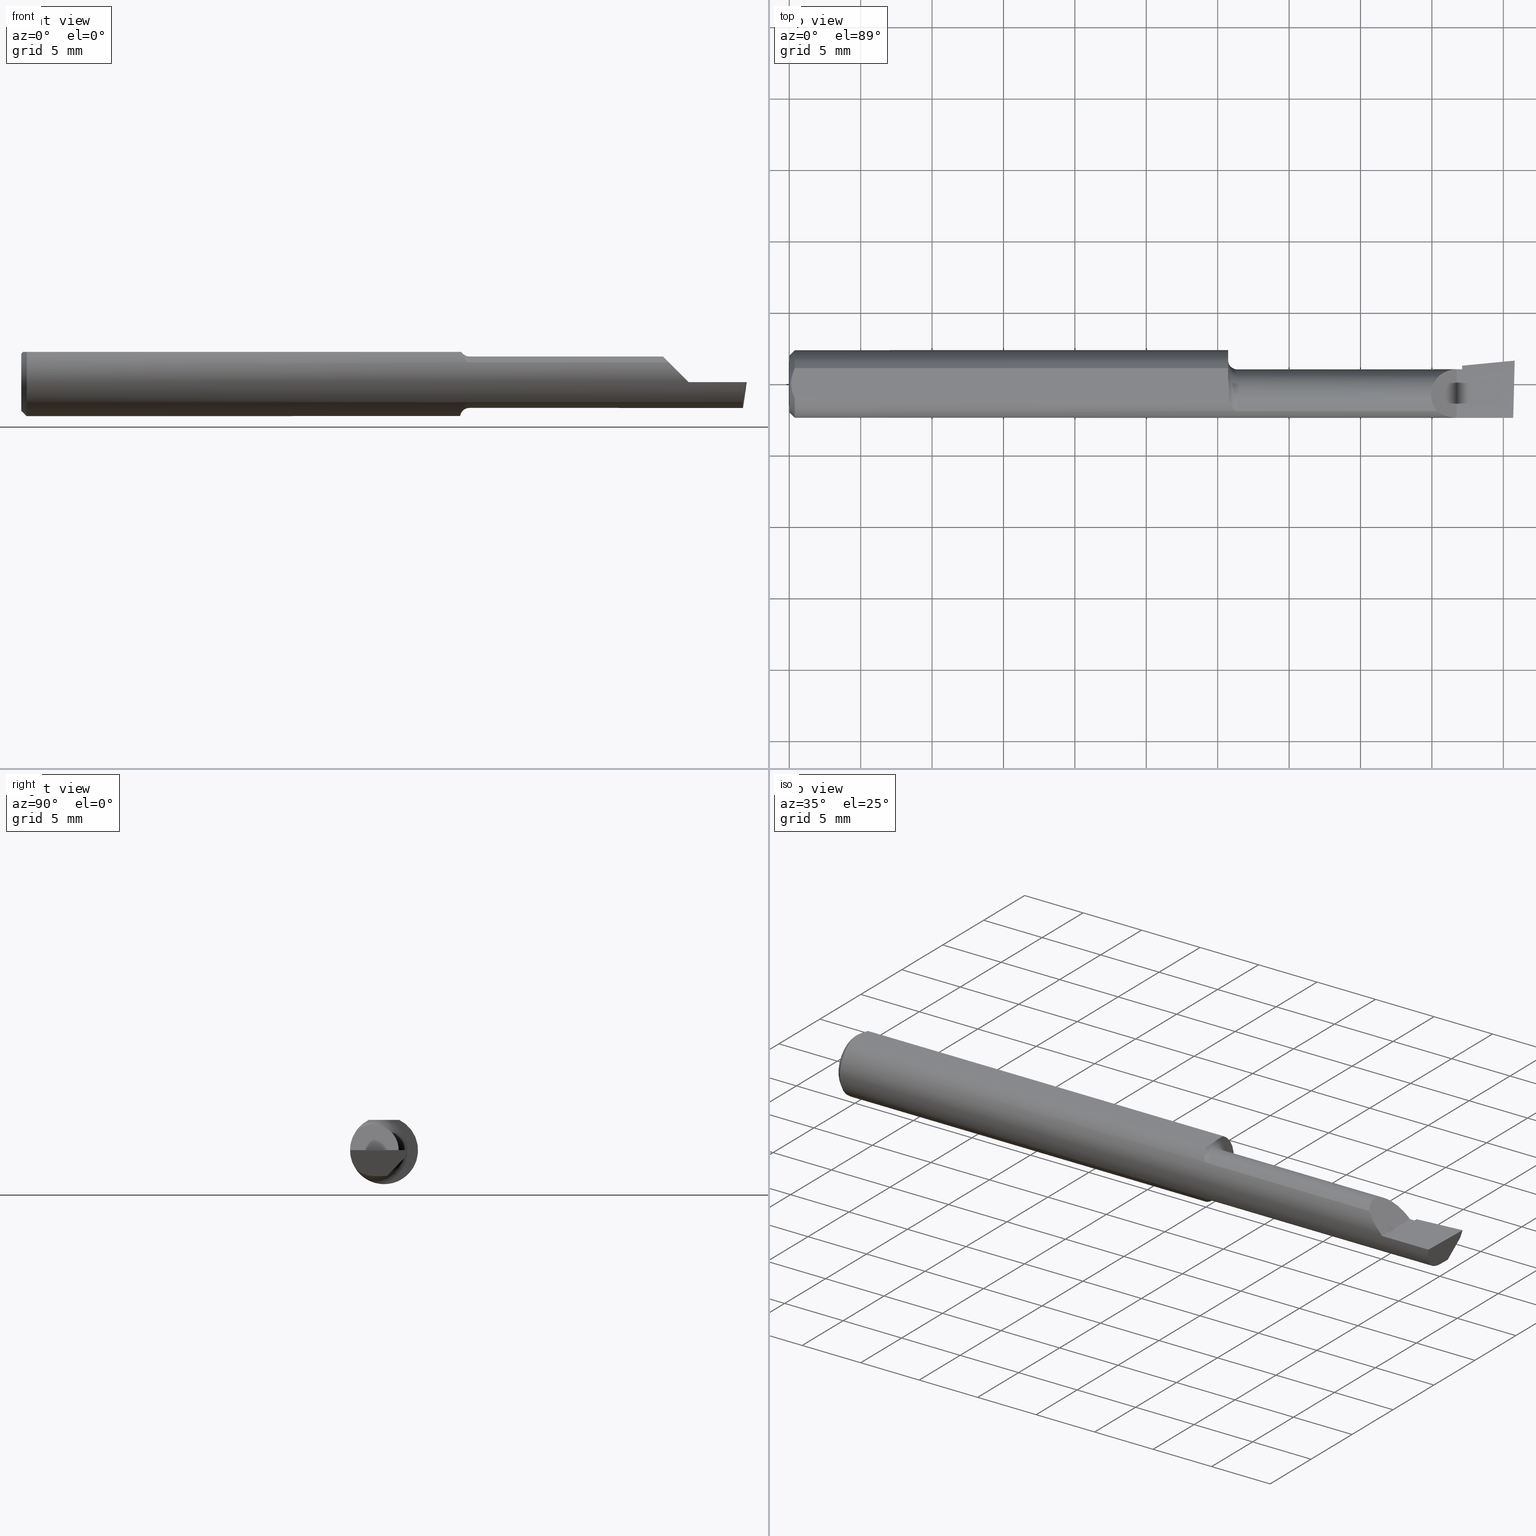
[diagram: canonical four-view strip — front | top / right | iso, engineering-drawing reading convention]
A machine part, canonical four-view strip (front | top / right | iso — engineering-drawing reading convention). The complete STEP part file that produces these views, byte-faithful:
ISO-10303-21;
HEADER;
FILE_DESCRIPTION (( 'STEP AP203' ),
    '1' );
FILE_NAME ('217342-B160750.STEP',
    '2024-04-23T17:39:09',
    ( '' ),
    ( '' ),
    'SwSTEP 2.0',
    'SolidWorks 2022',
    '' );
FILE_SCHEMA (( 'CONFIG_CONTROL_DESIGN' ));
ENDSEC;

DATA;
#1 = CARTESIAN_POINT ( 'NONE',  ( 1.989625015145393139, -0.07608366013071823919, -0.05451822320209416539 ) ) ;
#2 = EDGE_LOOP ( 'NONE', ( #332, #280, #528, #337 ) ) ;
#3 = DIRECTION ( 'NONE',  ( 2.972230601656782806E-18, -0.6963153109074924352, -0.7177360153954949196 ) ) ;
#4 = FACE_OUTER_BOUND ( 'NONE', #188, .T. ) ;
#5 = ORIENTED_EDGE ( 'NONE', *, *, #46, .F. ) ;
#6 = VECTOR ( 'NONE', #486, 39.37007874015748143 ) ;
#7 = CARTESIAN_POINT ( 'NONE',  ( 1.227249994923977461, -0.07326991650738474970, -0.05826485454810933357 ) ) ;
#8 = ADVANCED_FACE ( 'NONE', ( #36 ), #130, .T. ) ;
#9 = LINE ( 'NONE', #493, #559 ) ;
#10 = ORIENTED_EDGE ( 'NONE', *, *, #96, .T. ) ;
#11 =( CONVERSION_BASED_UNIT ( 'INCH', #599 ) LENGTH_UNIT ( ) NAMED_UNIT ( #562 ) );
#12 = DIRECTION ( 'NONE',  ( 0.000000000000000000, -0.6963153109074924352, -0.7177360153954949196 ) ) ;
#13 = ORIENTED_EDGE ( 'NONE', *, *, #607, .F. ) ;
#14 = DIRECTION ( 'NONE',  ( 0.7071067811865391350, 0.000000000000000000, -0.7071067811865558994 ) ) ;
#15 = CC_DESIGN_PERSON_AND_ORGANIZATION_ASSIGNMENT ( #60, #365, ( #136 ) ) ;
#16 = ORIENTED_EDGE ( 'NONE', *, *, #604, .T. ) ;
#17 = DIRECTION ( 'NONE',  ( 4.268512490100411279E-18, -1.000000000000000000, 0.000000000000000000 ) ) ;
#18 = VERTEX_POINT ( 'NONE', #198 ) ;
#19 =( NAMED_UNIT ( * ) SI_UNIT ( $, .STERADIAN. ) SOLID_ANGLE_UNIT ( ) );
#20 = CC_DESIGN_PERSON_AND_ORGANIZATION_ASSIGNMENT ( #420, #275, ( #166 ) ) ;
#21 = LINE ( 'NONE', #230, #22 ) ;
#22 = VECTOR ( 'NONE', #451, 39.37007874015748143 ) ;
#23 = CARTESIAN_POINT ( 'NONE',  ( 1.854999999999999982, 0.02466814268713798594, -0.04023083677511907902 ) ) ;
#24 = ADVANCED_FACE ( 'NONE', ( #382 ), #458, .F. ) ;
#25 = DIRECTION ( 'NONE',  ( 0.000000000000000000, -1.000000000000000000, 0.000000000000000000 ) ) ;
#26 = PERSON_AND_ORGANIZATION_ROLE ( 'classification_officer' ) ;
#27 = CARTESIAN_POINT ( 'NONE',  ( 1.989625015145393139, -0.07608366013071823919, -0.05451822320209416539 ) ) ;
#28 = ADVANCED_FACE ( 'NONE', ( #292 ), #392, .T. ) ;
#29 = APPLICATION_CONTEXT ( 'configuration controlled 3d designs of mechanical parts and assemblies' ) ;
#30 = CARTESIAN_POINT ( 'NONE',  ( 5.659797890829555466E-31, -0.09359999999999998876, 1.030335658007946046E-15 ) ) ;
#31 = ORIENTED_EDGE ( 'NONE', *, *, #257, .T. ) ;
#32 = FACE_OUTER_BOUND ( 'NONE', #354, .T. ) ;
#33 = ORIENTED_EDGE ( 'NONE', *, *, #131, .T. ) ;
#34 = EDGE_CURVE ( 'NONE', #59, #248, #347, .T. ) ;
#35 = DIRECTION ( 'NONE',  ( 2.429359850419096032E-34, 4.268512490100411895E-17, 1.000000000000000000 ) ) ;
#36 = FACE_OUTER_BOUND ( 'NONE', #425, .T. ) ;
#37 = VECTOR ( 'NONE', #385, 39.37007874015748854 ) ;
#38 = APPROVAL_ROLE ( '' ) ;
#39 = LINE ( 'NONE', #422, #240 ) ;
#40 = ORIENTED_EDGE ( 'NONE', *, *, #228, .T. ) ;
#41 = CIRCLE ( 'NONE', #95, 0.07100000000000017408 ) ;
#42 = ADVANCED_FACE ( 'NONE', ( #255 ), #295, .T. ) ;
#43 = DIRECTION ( 'NONE',  ( 1.000000000000000000, 4.268512490100411279E-18, 0.000000000000000000 ) ) ;
#44 = ORIENTED_EDGE ( 'NONE', *, *, #99, .F. ) ;
#45 = CARTESIAN_POINT ( 'NONE',  ( 1.996243047997680486, 0.008417438355111600892, -0.07100000000000021572 ) ) ;
#46 = EDGE_CURVE ( 'NONE', #212, #494, #362, .T. ) ;
#47 = CARTESIAN_POINT ( 'NONE',  ( 1.988641161029047755, -0.06318680184005832923, -0.06527786071030766690 ) ) ;
#48 = PRODUCT_DEFINITION_SHAPE ( 'NONE', 'NONE',  #136 ) ;
#49 = CARTESIAN_POINT ( 'NONE',  ( 1.222372878085588033, -0.06813570069660582207, -0.06426486695182642706 ) ) ;
#50 = CARTESIAN_POINT ( 'NONE',  ( 1.212861144841092864, -0.04209513036041390849, 0.08360000000000000764 ) ) ;
#51 = ORIENTED_EDGE ( 'NONE', *, *, #322, .T. ) ;
#52 = VECTOR ( 'NONE', #259, 39.37007874015748143 ) ;
#53 = DIRECTION ( 'NONE',  ( -1.000000000000000000, -4.268512490100411279E-18, -0.000000000000000000 ) ) ;
#54 = LOCAL_TIME ( 10, 39, 9.000000000000000000, #174 ) ;
#55 = PLANE ( 'NONE',  #311 ) ;
#56 = ORIENTED_EDGE ( 'NONE', *, *, #565, .F. ) ;
#57 = CARTESIAN_POINT ( 'NONE',  ( 0.005975039161239527503, -0.01453776427033146371, 0.08359999999999996600 ) ) ;
#58 = DIRECTION ( 'NONE',  ( 0.000000000000000000, -1.000000000000000000, 0.000000000000000000 ) ) ;
#59 = VERTEX_POINT ( 'NONE', #50 ) ;
#60 = PERSON_AND_ORGANIZATION ( #74, #479 ) ;
#61 = PLANE ( 'NONE',  #619 ) ;
#62 = VERTEX_POINT ( 'NONE', #152 ) ;
#63 = PERSON_AND_ORGANIZATION ( #74, #479 ) ;
#64 = EDGE_CURVE ( 'NONE', #266, #98, #253, .T. ) ;
#65 = LINE ( 'NONE', #501, #141 ) ;
#66 = ORIENTED_EDGE ( 'NONE', *, *, #394, .F. ) ;
#67 = PERSON_AND_ORGANIZATION ( #74, #479 ) ;
#68 = DIRECTION ( 'NONE',  ( 0.1240019227989323097, 0.3022330132596648400, 0.9451342385281314984 ) ) ;
#69 = ORIENTED_EDGE ( 'NONE', *, *, #604, .F. ) ;
#70 = AXIS2_PLACEMENT_3D ( 'NONE', #144, #43, #244 ) ;
#71 =( LENGTH_UNIT ( ) NAMED_UNIT ( * ) SI_UNIT ( $, .METRE. ) );
#72 = CARTESIAN_POINT ( 'NONE',  ( 1.995862624392068074, -0.09360000000000009979, -6.605666309584466665E-17 ) ) ;
#73 = EDGE_CURVE ( 'NONE', #491, #145, #81, .T. ) ;
#74 = PERSON ( 'UNSPECIFIED', 'UNSPECIFIED', 'UNSPECIFIED', ('UNSPECIFIED'), ('UNSPECIFIED'), ('UNSPECIFIED') ) ;
#75 = LINE ( 'NONE', #30, #246 ) ;
#76 = VECTOR ( 'NONE', #206, 39.37007874015748143 ) ;
#77 =( GEOMETRIC_REPRESENTATION_CONTEXT ( 3 ) GLOBAL_UNCERTAINTY_ASSIGNED_CONTEXT ( ( #109 ) ) GLOBAL_UNIT_ASSIGNED_CONTEXT ( ( #11, #403, #19 ) ) REPRESENTATION_CONTEXT ( 'NONE', 'WORKASPACE' ) );
#78 = EDGE_CURVE ( 'NONE', #494, #147, #627, .T. ) ;
#79 = PERSON_AND_ORGANIZATION_ROLE ( 'creator' ) ;
#80 = CARTESIAN_POINT ( 'NONE',  ( 0.01500000000000000291, -0.04209513035969835587, 0.08360000000000000764 ) ) ;
#81 = CIRCLE ( 'NONE', #150, 0.09360000000000001652 ) ;
#82 =( BOUNDED_CURVE ( )  B_SPLINE_CURVE ( 3, ( #535, #102, #393, #247 ),
 .UNSPECIFIED., .F., .T. ) 
 B_SPLINE_CURVE_WITH_KNOTS ( ( 4, 4 ),
 ( 5.587886473277670518, 7.853981633974482790 ),
 .UNSPECIFIED. ) 
 CURVE ( )  GEOMETRIC_REPRESENTATION_ITEM ( )  RATIONAL_B_SPLINE_CURVE ( ( 1.000000000000000000, 0.6159343746860722613, 0.6159343746860722613, 1.000000000000000000 ) ) 
 REPRESENTATION_ITEM ( '' )  );
#83 = PLANE ( 'NONE',  #190 ) ;
#84 = ORIENTED_EDGE ( 'NONE', *, *, #279, .T. ) ;
#85 = B_SPLINE_CURVE_WITH_KNOTS ( 'NONE', 3,
 ( #455, #318, #364, #321, #274, #267, #369, #177 ),
 .UNSPECIFIED., .F., .F.,
 ( 4, 2, 2, 4 ),
 ( 0.009574067517472211256, 0.01031724332539403835, 0.01068883122935495276, 0.01106041913331586718 ),
 .UNSPECIFIED. ) ;
#86 = FACE_OUTER_BOUND ( 'NONE', #2, .T. ) ;
#87 = ADVANCED_FACE ( 'NONE', ( #215 ), #55, .F. ) ;
#88 = ORIENTED_EDGE ( 'NONE', *, *, #375, .F. ) ;
#89 = SECURITY_CLASSIFICATION_LEVEL ( 'unclassified' ) ;
#90 = FACE_OUTER_BOUND ( 'NONE', #334, .T. ) ;
#91 = EDGE_LOOP ( 'NONE', ( #40, #5, #84, #216, #580, #33 ) ) ;
#92 = B_SPLINE_CURVE_WITH_KNOTS ( 'NONE', 3,
 ( #582, #523, #296, #160, #7, #483, #49, #346, #489, #258, #446, #213, #114, #586 ),
 .UNSPECIFIED., .F., .F.,
 ( 4, 2, 2, 2, 2, 2, 4 ),
 ( 1.959461805732903391E-07, 0.0001418114856513832186, 0.0002834270251222010813, 0.0005666581040638365898, 0.001133120261947111402, 0.001699582419830386213, 0.002266044577713661242 ),
 .UNSPECIFIED. ) ;
#93 = DIRECTION ( 'NONE',  ( 0.09165774897393336174, -0.9519021185660612172, 0.2923717047227308297 ) ) ;
#94 = VERTEX_POINT ( 'NONE', #103 ) ;
#95 = AXIS2_PLACEMENT_3D ( 'NONE', #97, #379, #370 ) ;
#96 = EDGE_CURVE ( 'NONE', #145, #283, #9, .T. ) ;
#97 = CARTESIAN_POINT ( 'NONE',  ( 1.854999999999999982, -0.03060000000000022424, 0.000000000000000000 ) ) ;
#98 = VERTEX_POINT ( 'NONE', #167 ) ;
#99 = EDGE_CURVE ( 'NONE', #283, #491, #299, .T. ) ;
#100 = CARTESIAN_POINT ( 'NONE',  ( 0.000000000000000000, 0.000000000000000000, 0.000000000000000000 ) ) ;
#101 = CARTESIAN_POINT ( 'NONE',  ( 0.000000000000000000, -0.04209513035969835587, 0.08360000000000000764 ) ) ;
#102 = CARTESIAN_POINT ( 'NONE',  ( 1.740893772288689023, -0.02263899945514353737, 0.09910622771130987718 ) ) ;
#103 = CARTESIAN_POINT ( 'NONE',  ( 0.01499999999999999771, 0.04209513035969837669, 0.08360000000000000764 ) ) ;
#104 = CIRCLE ( 'NONE', #525, 0.07859999999999965625 ) ;
#105 = CARTESIAN_POINT ( 'NONE',  ( 0.005000000000000237761, 1.025183009042025117E-17, 0.08360000000000000764 ) ) ;
#106 = CARTESIAN_POINT ( 'NONE',  ( 0.01499999999999999771, 0.000000000000000000, -0.09360000000000001652 ) ) ;
#107 = EDGE_CURVE ( 'NONE', #18, #62, #388, .T. ) ;
#108 = VECTOR ( 'NONE', #504, 39.37007874015748143 ) ;
#109 = UNCERTAINTY_MEASURE_WITH_UNIT (LENGTH_MEASURE( 1.000000000000000082E-05 ), #11, 'distance_accuracy_value', 'NONE');
#110 = CARTESIAN_POINT ( 'NONE',  ( 1.013387277386880392, -0.03060000000000022771, 4.736658843696217583E-16 ) ) ;
#111 = CC_DESIGN_APPROVAL ( #579, ( #166 ) ) ;
#112 = CARTESIAN_POINT ( 'NONE',  ( 2.000000000000000000, 0.1436000000000000332, 0.08359999999999999376 ) ) ;
#113 = ORIENTED_EDGE ( 'NONE', *, *, #34, .F. ) ;
#114 = CARTESIAN_POINT ( 'NONE',  ( 1.209999999999995746, -0.01523829271462613828, -0.09264723852076074684 ) ) ;
#115 = CARTESIAN_POINT ( 'NONE',  ( 1.854999999999999982, 0.04694360585384958068, -0.01137731495658559321 ) ) ;
#116 = VERTEX_POINT ( 'NONE', #106 ) ;
#117 = ADVANCED_FACE ( 'NONE', ( #576 ), #61, .F. ) ;
#118 = APPROVAL_ROLE ( '' ) ;
#119 = CARTESIAN_POINT ( 'NONE',  ( 1.991292915001084296, -0.08756847698997996532, -0.03849042825095482651 ) ) ;
#120 = ORIENTED_EDGE ( 'NONE', *, *, #64, .T. ) ;
#121 = CALENDAR_DATE ( 2024, 23, 4 ) ;
#122 = SECURITY_CLASSIFICATION ( '', '', #89 ) ;
#123 = DIRECTION ( 'NONE',  ( -1.000000000000000000, 5.691349986800549142E-18, -0.000000000000000000 ) ) ;
#124 = ORIENTED_EDGE ( 'NONE', *, *, #583, .F. ) ;
#125 = PERSON_AND_ORGANIZATION ( #74, #479 ) ;
#126 = LINE ( 'NONE', #355, #303 ) ;
#127 = VECTOR ( 'NONE', #3, 39.37007874015748143 ) ;
#128 = LINE ( 'NONE', #602, #547 ) ;
#129 = LINE ( 'NONE', #223, #108 ) ;
#130 = CONICAL_SURFACE ( 'NONE', #428, 0.09360000000000001652, 0.7853981633974601584 ) ;
#131 = EDGE_CURVE ( 'NONE', #390, #307, #219, .T. ) ;
#132 = PLANE ( 'NONE',  #164 ) ;
#133 = COORDINATED_UNIVERSAL_TIME_OFFSET ( 8, 0, .BEHIND. ) ;
#134 = CARTESIAN_POINT ( 'NONE',  ( 1.220942860874688840, -0.06599234460544596559, 0.06650584501266759707 ) ) ;
#135 = ORIENTED_EDGE ( 'NONE', *, *, #616, .T. ) ;
#136 = PRODUCT_DEFINITION ( 'UNKNOWN', '', #166, #308 ) ;
#137 = CARTESIAN_POINT ( 'NONE',  ( 0.01499999999999999771, 0.000000000000000000, 0.000000000000000000 ) ) ;
#138 = ORIENTED_EDGE ( 'NONE', *, *, #214, .F. ) ;
#139 = DIRECTION ( 'NONE',  ( 1.000000000000000000, 0.000000000000000000, 0.000000000000000000 ) ) ;
#140 = ORIENTED_EDGE ( 'NONE', *, *, #554, .F. ) ;
#141 = VECTOR ( 'NONE', #14, 39.37007874015748143 ) ;
#142 = CC_DESIGN_PERSON_AND_ORGANIZATION_ASSIGNMENT ( #125, #79, ( #166 ) ) ;
#143 = LOCAL_TIME ( 10, 39, 9.000000000000000000, #545 ) ;
#144 = CARTESIAN_POINT ( 'NONE',  ( 1.209999999999999964, 0.06539999999999993041, 0.000000000000000000 ) ) ;
#145 = VERTEX_POINT ( 'NONE', #578 ) ;
#146 = CARTESIAN_POINT ( 'NONE',  ( 1.995862624392068074, -0.09360000000000009979, -6.605666309584466665E-17 ) ) ;
#147 = VERTEX_POINT ( 'NONE', #154 ) ;
#148 = B_SPLINE_CURVE_WITH_KNOTS ( 'NONE', 3,
 ( #284, #291, #187, #471, #564, #558 ),
 .UNSPECIFIED., .F., .F.,
 ( 4, 2, 4 ),
 ( 0.006881281100865561072, 0.007427683811376461706, 0.007974086521887361473 ),
 .UNSPECIFIED. ) ;
#149 = EDGE_CURVE ( 'NONE', #237, #476, #341, .T. ) ;
#150 = AXIS2_PLACEMENT_3D ( 'NONE', #158, #490, #438 ) ;
#151 = DIRECTION ( 'NONE',  ( 0.000000000000000000, 0.000000000000000000, 1.000000000000000000 ) ) ;
#152 = CARTESIAN_POINT ( 'NONE',  ( 1.854999999999999982, 0.04429519371539576006, -0.02000000000000000042 ) ) ;
#153 = CARTESIAN_POINT ( 'NONE',  ( 0.000000000000000000, 0.000000000000000000, -0.07859999999999965625 ) ) ;
#154 = CARTESIAN_POINT ( 'NONE',  ( 1.234999999999999876, -0.07608366013071811429, -0.05451822320209421396 ) ) ;
#155 = ORIENTED_EDGE ( 'NONE', *, *, #477, .F. ) ;
#156 = PLANE ( 'NONE',  #268 ) ;
#157 = ADVANCED_FACE ( 'NONE', ( #4 ), #531, .F. ) ;
#158 = CARTESIAN_POINT ( 'NONE',  ( 1.209999999999999964, 0.000000000000000000, 0.000000000000000000 ) ) ;
#159 = AXIS2_PLACEMENT_3D ( 'NONE', #492, #249, #352 ) ;
#160 = CARTESIAN_POINT ( 'NONE',  ( 1.228446742734843999, -0.07415202900322766244, -0.05712995986028734929 ) ) ;
#161 = DIRECTION ( 'NONE',  ( -1.000000000000000000, -4.268512490100411279E-18, -0.000000000000000000 ) ) ;
#162 = PRODUCT_RELATED_PRODUCT_CATEGORY ( 'detail', '', ( #389 ) ) ;
#163 = EDGE_LOOP ( 'NONE', ( #469, #298, #544, #453, #500, #192, #66, #204, #31, #329, #377, #242 ) ) ;
#164 = AXIS2_PLACEMENT_3D ( 'NONE', #265, #411, #182 ) ;
#165 = CARTESIAN_POINT ( 'NONE',  ( 1.234999999999999876, -0.03060000000000022771, 0.000000000000000000 ) ) ;
#166 = PRODUCT_DEFINITION_FORMATION_WITH_SPECIFIED_SOURCE ( 'ANY', '', #389, .NOT_KNOWN. ) ;
#167 = CARTESIAN_POINT ( 'NONE',  ( 1.854999999999999982, 0.003039038829300973361, -0.06252531540616797223 ) ) ;
#168 = ORIENTED_EDGE ( 'NONE', *, *, #442, .F. ) ;
#169 = DIRECTION ( 'NONE',  ( 0.000000000000000000, 0.000000000000000000, 1.000000000000000000 ) ) ;
#170 = CARTESIAN_POINT ( 'NONE',  ( 0.000000000000000000, -0.03060000000000023118, 0.000000000000000000 ) ) ;
#171 = EDGE_CURVE ( 'NONE', #283, #59, #85, .T. ) ;
#172 = ORIENTED_EDGE ( 'NONE', *, *, #293, .F. ) ;
#173 = APPLICATION_CONTEXT ( 'configuration controlled 3d designs of mechanical parts and assemblies' ) ;
#174 = COORDINATED_UNIVERSAL_TIME_OFFSET ( 8, 0, .BEHIND. ) ;
#175 = FACE_OUTER_BOUND ( 'NONE', #406, .T. ) ;
#176 = ORIENTED_EDGE ( 'NONE', *, *, #243, .T. ) ;
#177 = CARTESIAN_POINT ( 'NONE',  ( 1.212861144841092864, -0.04209513036041390849, 0.08360000000000000764 ) ) ;
#178 = PERSON_AND_ORGANIZATION_ROLE ( 'design_owner' ) ;
#179 = DIRECTION ( 'NONE',  ( 0.000000000000000000, 1.000000000000000000, -1.189000693621284344E-16 ) ) ;
#180 = ADVANCED_FACE ( 'NONE', ( #175 ), #226, .T. ) ;
#181 = CARTESIAN_POINT ( 'NONE',  ( 1.987153287650113009, -0.009717623157798383621, -0.08879077981909570816 ) ) ;
#182 = DIRECTION ( 'NONE',  ( 4.268512490100411279E-18, -1.000000000000000000, 0.000000000000000000 ) ) ;
#183 = CARTESIAN_POINT ( 'NONE',  ( 1.216341906786436500, -0.05682123740528505912, 0.07483672126184984230 ) ) ;
#184 = ORIENTED_EDGE ( 'NONE', *, *, #474, .T. ) ;
#185 = VECTOR ( 'NONE', #317, 39.37007874015748854 ) ;
#186 = EDGE_CURVE ( 'NONE', #556, #116, #65, .T. ) ;
#187 = CARTESIAN_POINT ( 'NONE',  ( 0.005981829149300847866, 0.01454044632356568667, 0.08360000000000000764 ) ) ;
#188 = EDGE_LOOP ( 'NONE', ( #445, #436, #371, #397, #140, #113 ) ) ;
#189 = CALENDAR_DATE ( 2024, 23, 4 ) ;
#190 = AXIS2_PLACEMENT_3D ( 'NONE', #191, #93, #278 ) ;
#191 = CARTESIAN_POINT ( 'NONE',  ( 1.434010493224923355, 0.009901409102841280535, -6.829619984160658046E-17 ) ) ;
#192 = ORIENTED_EDGE ( 'NONE', *, *, #34, .T. ) ;
#193 = APPROVAL_DATE_TIME ( #557, #470 ) ;
#194 = DIRECTION ( 'NONE',  ( 0.000000000000000000, -1.000000000000000000, 4.268512490100411895E-17 ) ) ;
#195 = CARTESIAN_POINT ( 'NONE',  ( 0.01499999999999999771, 0.000000000000000000, 0.000000000000000000 ) ) ;
#196 = VECTOR ( 'NONE', #123, 39.37007874015748143 ) ;
#197 = CARTESIAN_POINT ( 'NONE',  ( 1.222718485147074929, -0.06880529263944755447, 0.06356579742164532310 ) ) ;
#198 = CARTESIAN_POINT ( 'NONE',  ( 1.854999999999999982, 0.05043808801135914177, 1.026577253869148871E-15 ) ) ;
#199 = CARTESIAN_POINT ( 'NONE',  ( 0.005000000000000237761, 1.025183009042025117E-17, 0.08360000000000000764 ) ) ;
#200 = EDGE_LOOP ( 'NONE', ( #310, #155, #138, #69, #256, #497 ) ) ;
#201 = LINE ( 'NONE', #628, #127 ) ;
#202 = DIRECTION ( 'NONE',  ( -1.000000000000000000, 0.000000000000000000, 5.493159289247764363E-16 ) ) ;
#203 = EDGE_CURVE ( 'NONE', #618, #266, #273, .T. ) ;
#204 = ORIENTED_EDGE ( 'NONE', *, *, #306, .F. ) ;
#205 = CARTESIAN_POINT ( 'NONE',  ( 0.01500000000000000291, -0.04209513035969835587, 0.08360000000000000764 ) ) ;
#206 = DIRECTION ( 'NONE',  ( 1.000000000000000000, 4.268512490100411279E-18, 0.000000000000000000 ) ) ;
#207 = ORIENTED_EDGE ( 'NONE', *, *, #78, .T. ) ;
#208 = CARTESIAN_POINT ( 'NONE',  ( 0.005000000000000228220, -0.007328888879231051229, 0.08359999999999999376 ) ) ;
#209 = CARTESIAN_POINT ( 'NONE',  ( 0.000000000000000000, 0.000000000000000000, 0.000000000000000000 ) ) ;
#210 = CC_DESIGN_DATE_AND_TIME_ASSIGNMENT ( #611, #551, ( #122 ) ) ;
#211 = CONICAL_SURFACE ( 'NONE', #581, 0.09360000000000001652, 0.7853981633974601584 ) ;
#212 = VERTEX_POINT ( 'NONE', #233 ) ;
#213 = CARTESIAN_POINT ( 'NONE',  ( 1.210327566746672412, -0.02246933888146969080, -0.09115683487700423915 ) ) ;
#214 = EDGE_CURVE ( 'NONE', #618, #18, #315, .T. ) ;
#215 = FACE_OUTER_BOUND ( 'NONE', #200, .T. ) ;
#216 = ORIENTED_EDGE ( 'NONE', *, *, #583, .T. ) ;
#217 = LINE ( 'NONE', #261, #185 ) ;
#218 = LOCAL_TIME ( 10, 39, 9.000000000000000000, #620 ) ;
#219 = LINE ( 'NONE', #404, #52 ) ;
#220 = EDGE_CURVE ( 'NONE', #212, #402, #359, .T. ) ;
#221 = ORIENTED_EDGE ( 'NONE', *, *, #220, .T. ) ;
#222 = DATE_TIME_ROLE ( 'creation_date' ) ;
#223 = CARTESIAN_POINT ( 'NONE',  ( 1.854999999999999982, -0.03060000000000022424, -0.07100000000000021572 ) ) ;
#224 = ORIENTED_EDGE ( 'NONE', *, *, #64, .F. ) ;
#225 = DIRECTION ( 'NONE',  ( 0.1053106618241779063, 0.6976485211320171409, 0.7086580314005218595 ) ) ;
#226 = CYLINDRICAL_SURFACE ( 'NONE', #229, 0.07100000000000017408 ) ;
#227 = ORIENTED_EDGE ( 'NONE', *, *, #286, .F. ) ;
#228 = EDGE_CURVE ( 'NONE', #307, #494, #407, .T. ) ;
#229 = AXIS2_PLACEMENT_3D ( 'NONE', #170, #550, #17 ) ;
#230 = CARTESIAN_POINT ( 'NONE',  ( 1.988799325593724632, -0.03030670001847553252, -0.07100000000000021572 ) ) ;
#231 = COORDINATED_UNIVERSAL_TIME_OFFSET ( 8, 0, .BEHIND. ) ;
#232 = VECTOR ( 'NONE', #584, 39.37007874015748143 ) ;
#233 = CARTESIAN_POINT ( 'NONE',  ( 1.988791645263412011, -0.03060000000000022424, -0.07100000000000021572 ) ) ;
#234 = CARTESIAN_POINT ( 'NONE',  ( 1.801509571749044802, -0.08756847698998002083, 0.03849042825095470161 ) ) ;
#235 = EDGE_CURVE ( 'NONE', #289, #390, #499, .T. ) ;
#236 = CARTESIAN_POINT ( 'NONE',  ( 0.000000000000000000, 1.054420894065869177E-17, 0.07859999999999965625 ) ) ;
#237 = VERTEX_POINT ( 'NONE', #418 ) ;
#238 = CARTESIAN_POINT ( 'NONE',  ( 0.01499999999999999771, 0.000000000000000000, 0.000000000000000000 ) ) ;
#239 = ORIENTED_EDGE ( 'NONE', *, *, #73, .T. ) ;
#240 = VECTOR ( 'NONE', #468, 39.37007874015748143 ) ;
#241 = FACE_OUTER_BOUND ( 'NONE', #91, .T. ) ;
#242 = ORIENTED_EDGE ( 'NONE', *, *, #78, .F. ) ;
#243 = EDGE_CURVE ( 'NONE', #98, #402, #431, .T. ) ;
#244 = DIRECTION ( 'NONE',  ( -4.268512490100411279E-18, 1.000000000000000000, 0.000000000000000000 ) ) ;
#245 = EDGE_LOOP ( 'NONE', ( #56, #172, #448 ) ) ;
#246 = VECTOR ( 'NONE', #552, 39.37007874015748143 ) ;
#247 = CARTESIAN_POINT ( 'NONE',  ( 1.840000000000000080, 0.04039999999999985963, 1.959434878635762025E-17 ) ) ;
#248 = VERTEX_POINT ( 'NONE', #80 ) ;
#249 = DIRECTION ( 'NONE',  ( -1.000000000000000000, -0.000000000000000000, -0.000000000000000000 ) ) ;
#250 = CARTESIAN_POINT ( 'NONE',  ( 1.854999999999999982, 0.02466814268713798594, -0.04023083677511907902 ) ) ;
#251 = CC_DESIGN_PERSON_AND_ORGANIZATION_ASSIGNMENT ( #538, #178, ( #389 ) ) ;
#252 = DIRECTION ( 'NONE',  ( -1.000000000000000000, -4.268512490100411279E-18, 0.000000000000000000 ) ) ;
#253 = LINE ( 'NONE', #250, #232 ) ;
#254 = DIRECTION ( 'NONE',  ( 0.000000000000000000, 0.000000000000000000, -1.000000000000000000 ) ) ;
#255 = FACE_OUTER_BOUND ( 'NONE', #163, .T. ) ;
#256 = ORIENTED_EDGE ( 'NONE', *, *, #419, .F. ) ;
#257 = EDGE_CURVE ( 'NONE', #94, #145, #126, .T. ) ;
#258 = CARTESIAN_POINT ( 'NONE',  ( 1.212858269845931369, -0.04306185800455388651, -0.08341374477435810342 ) ) ;
#259 = DIRECTION ( 'NONE',  ( -0.02617694830786939167, -0.9996573249755573709, 1.459184416195897376E-17 ) ) ;
#260 = VERTEX_POINT ( 'NONE', #459 ) ;
#261 = CARTESIAN_POINT ( 'NONE',  ( 1.434596552969581884, 0.003814945941878291214, -0.02000000000000000042 ) ) ;
#262 = ADVANCED_FACE ( 'NONE', ( #603 ), #132, .T. ) ;
#263 = DIRECTION ( 'NONE',  ( 1.253267817926300227E-18, -0.2936076258024065688, -0.9559260233253794592 ) ) ;
#264 = ORIENTED_EDGE ( 'NONE', *, *, #279, .F. ) ;
#265 = CARTESIAN_POINT ( 'NONE',  ( 1.854999999999999982, 0.05043808801135670622, 0.000000000000000000 ) ) ;
#266 = VERTEX_POINT ( 'NONE', #539 ) ;
#267 = CARTESIAN_POINT ( 'NONE',  ( 1.213362255574652604, -0.03233437538769824704, 0.08360000000000003539 ) ) ;
#268 = AXIS2_PLACEMENT_3D ( 'NONE', #529, #252, #294 ) ;
#269 = EDGE_LOOP ( 'NONE', ( #239, #10, #472 ) ) ;
#270 = CARTESIAN_POINT ( 'NONE',  ( 1.854999999999999982, 0.04039999999999999841, 1.030335658007946637E-15 ) ) ;
#271 = CARTESIAN_POINT ( 'NONE',  ( 1.989254605881537685, 0.03820997996013979214, -0.08190066459133922561 ) ) ;
#272 = CARTESIAN_POINT ( 'NONE',  ( 0.000000000000000000, 0.000000000000000000, 0.000000000000000000 ) ) ;
#273 = CIRCLE ( 'NONE', #349, 0.07100000000000021572 ) ;
#274 = CARTESIAN_POINT ( 'NONE',  ( 1.213154437539956110, -0.02258334521707476214, 0.08360000000000000764 ) ) ;
#275 = PERSON_AND_ORGANIZATION_ROLE ( 'design_supplier' ) ;
#276 = AXIS2_PLACEMENT_3D ( 'NONE', #209, #396, #482 ) ;
#277 = CARTESIAN_POINT ( 'NONE',  ( 1.854999999999999982, -0.2500000000000000555, 1.135460985248596835E-17 ) ) ;
#278 = DIRECTION ( 'NONE',  ( 0.000000000000000000, -0.2936076258024065688, -0.9559260233253794592 ) ) ;
#279 = EDGE_CURVE ( 'NONE', #212, #509, #21, .T. ) ;
#280 = ORIENTED_EDGE ( 'NONE', *, *, #616, .F. ) ;
#281 = CALENDAR_DATE ( 2024, 23, 4 ) ;
#282 = CARTESIAN_POINT ( 'NONE',  ( 0.000000000000000000, 0.000000000000000000, 0.000000000000000000 ) ) ;
#283 = VERTEX_POINT ( 'NONE', #601 ) ;
#284 = CARTESIAN_POINT ( 'NONE',  ( 0.005000000000000237761, 1.025183009042025117E-17, 0.08360000000000000764 ) ) ;
#285 = ORIENTED_EDGE ( 'NONE', *, *, #442, .T. ) ;
#286 = EDGE_CURVE ( 'NONE', #402, #260, #129, .T. ) ;
#287 = AXIS2_PLACEMENT_3D ( 'NONE', #624, #435, #437 ) ;
#288 = PLANE ( 'NONE',  #368 ) ;
#289 = VERTEX_POINT ( 'NONE', #543 ) ;
#290 = AXIS2_PLACEMENT_3D ( 'NONE', #339, #536, #441 ) ;
#291 = CARTESIAN_POINT ( 'NONE',  ( 0.005000000000000227353, 0.007308422719211826561, 0.08360000000000000764 ) ) ;
#292 = FACE_OUTER_BOUND ( 'NONE', #356, .T. ) ;
#293 = EDGE_CURVE ( 'NONE', #360, #476, #384, .T. ) ;
#294 = DIRECTION ( 'NONE',  ( 4.268512490100411279E-18, -1.000000000000000000, 0.000000000000000000 ) ) ;
#295 = CYLINDRICAL_SURFACE ( 'NONE', #276, 0.09360000000000001652 ) ;
#296 = CARTESIAN_POINT ( 'NONE',  ( 1.231360941731893810, -0.07557034852506704092, -0.05524018594043163255 ) ) ;
#297 = CARTESIAN_POINT ( 'NONE',  ( 1.434596552969581884, 0.003814945941878291214, -0.02000000000000000042 ) ) ;
#298 = ORIENTED_EDGE ( 'NONE', *, *, #302, .T. ) ;
#299 = CIRCLE ( 'NONE', #460, 0.09600000000000015465 ) ;
#300 = CARTESIAN_POINT ( 'NONE',  ( 1.989625015145393139, -0.07608366013071823919, -0.05451822320209416539 ) ) ;
#301 = DIRECTION ( 'NONE',  ( 4.268512490100411279E-18, -1.000000000000000000, 1.189000693621284344E-16 ) ) ;
#302 = EDGE_CURVE ( 'NONE', #307, #360, #75, .T. ) ;
#303 = VECTOR ( 'NONE', #496, 39.37007874015748143 ) ;
#304 = FACE_OUTER_BOUND ( 'NONE', #585, .T. ) ;
#305 = DIRECTION ( 'NONE',  ( 0.000000000000000000, -1.189000693621284344E-16, -1.000000000000000000 ) ) ;
#306 = EDGE_CURVE ( 'NONE', #94, #116, #587, .T. ) ;
#307 = VERTEX_POINT ( 'NONE', #146 ) ;
#308 = DESIGN_CONTEXT ( 'detailed design', #173, 'design' ) ;
#309 = LINE ( 'NONE', #181, #426 ) ;
#310 = ORIENTED_EDGE ( 'NONE', *, *, #131, .F. ) ;
#311 = AXIS2_PLACEMENT_3D ( 'NONE', #447, #344, #202 ) ;
#312 = CARTESIAN_POINT ( 'NONE',  ( 1.854999999999999982, -0.03060000000000022424, 0.000000000000000000 ) ) ;
#313 = VERTEX_POINT ( 'NONE', #622 ) ;
#314 = APPROVAL_STATUS ( 'not_yet_approved' ) ;
#315 = LINE ( 'NONE', #277, #401 ) ;
#316 = ORIENTED_EDGE ( 'NONE', *, *, #507, .F. ) ;
#317 = DIRECTION ( 'NONE',  ( 0.9953961983671800740, 0.09584575252021028391, -0.000000000000000000 ) ) ;
#318 = CARTESIAN_POINT ( 'NONE',  ( 1.209999999999999742, 0.006742283091807376762, 0.08360000000000003539 ) ) ;
#319 = VECTOR ( 'NONE', #570, 39.37007874015748143 ) ;
#320 = APPROVAL_DATE_TIME ( #495, #598 ) ;
#321 = CARTESIAN_POINT ( 'NONE',  ( 1.212798152027436682, -0.01771129213186534504, 0.08360000000000003539 ) ) ;
#322 = EDGE_CURVE ( 'NONE', #59, #237, #575, .T. ) ;
#323 = APPLICATION_PROTOCOL_DEFINITION ( 'international standard', 'config_control_design', 1994, #173 ) ;
#324 = AXIS2_PLACEMENT_3D ( 'NONE', #333, #510, #568 ) ;
#325 = DIRECTION ( 'NONE',  ( -1.000000000000000000, -4.268512490100411279E-18, -0.000000000000000000 ) ) ;
#326 = CARTESIAN_POINT ( 'NONE',  ( 1.234999999999999876, -0.07608366013071811429, 0.05451822320209421396 ) ) ;
#327 = DIRECTION ( 'NONE',  ( 1.000000000000000000, 0.000000000000000000, 0.000000000000000000 ) ) ;
#328 = DIRECTION ( 'NONE',  ( -1.000000000000000000, -0.000000000000000000, -0.000000000000000000 ) ) ;
#329 = ORIENTED_EDGE ( 'NONE', *, *, #73, .F. ) ;
#330 = CARTESIAN_POINT ( 'NONE',  ( 2.075578470192265268, -0.1475581462076027695, 0.6605145482336969298 ) ) ;
#331 = ADVANCED_FACE ( 'NONE', ( #241 ), #609, .T. ) ;
#332 = ORIENTED_EDGE ( 'NONE', *, *, #235, .F. ) ;
#333 = CARTESIAN_POINT ( 'NONE',  ( 0.01499999999999999771, 0.000000000000000000, 0.000000000000000000 ) ) ;
#334 = EDGE_LOOP ( 'NONE', ( #264, #221, #560, #184 ) ) ;
#335 = CC_DESIGN_PERSON_AND_ORGANIZATION_ASSIGNMENT ( #512, #26, ( #122 ) ) ;
#336 = DIRECTION ( 'NONE',  ( 0.9922060308645480609, -0.02598182930468958748, -0.1218693434051461438 ) ) ;
#337 = ORIENTED_EDGE ( 'NONE', *, *, #477, .T. ) ;
#338 = PLANE ( 'NONE',  #287 ) ;
#339 = CARTESIAN_POINT ( 'NONE',  ( 1.854999999999999982, 0.05043808801135670622, 0.000000000000000000 ) ) ;
#340 = EDGE_CURVE ( 'NONE', #98, #266, #41, .T. ) ;
#341 = LINE ( 'NONE', #524, #76 ) ;
#342 = LINE ( 'NONE', #45, #37 ) ;
#343 = CIRCLE ( 'NONE', #395, 0.07100000000000014633 ) ;
#344 = DIRECTION ( 'NONE',  ( -5.493159289247764363E-16, 0.000000000000000000, -1.000000000000000000 ) ) ;
#345 = EDGE_LOOP ( 'NONE', ( #488, #285 ) ) ;
#346 = CARTESIAN_POINT ( 'NONE',  ( 1.218052623108271115, -0.06089616178095316051, -0.07140423527607847598 ) ) ;
#347 = LINE ( 'NONE', #101, #571 ) ;
#348 = ADVANCED_FACE ( 'NONE', ( #86 ), #83, .F. ) ;
#349 = AXIS2_PLACEMENT_3D ( 'NONE', #462, #416, #25 ) ;
#350 = APPROVAL_PERSON_ORGANIZATION ( #63, #579, #595 ) ;
#351 = VERTEX_POINT ( 'NONE', #236 ) ;
#352 = DIRECTION ( 'NONE',  ( 0.000000000000000000, 0.000000000000000000, 1.000000000000000000 ) ) ;
#353 = DIRECTION ( 'NONE',  ( -1.000000000000000000, -0.000000000000000000, -0.000000000000000000 ) ) ;
#354 = EDGE_LOOP ( 'NONE', ( #88, #511, #413, #534, #517 ) ) ;
#355 = CARTESIAN_POINT ( 'NONE',  ( 0.000000000000000000, 0.04209513035969837669, 0.08360000000000000764 ) ) ;
#356 = EDGE_LOOP ( 'NONE', ( #373, #227, #466 ) ) ;
#357 = ADVANCED_FACE ( 'NONE', ( #90 ), #376, .F. ) ;
#358 = DIRECTION ( 'NONE',  ( 2.972230601656782806E-18, -0.6963153109074924352, -0.7177360153954949196 ) ) ;
#359 = LINE ( 'NONE', #546, #196 ) ;
#360 = VERTEX_POINT ( 'NONE', #605 ) ;
#361 = LOCAL_TIME ( 10, 39, 9.000000000000000000, #133 ) ;
#362 =( BOUNDED_CURVE ( )  B_SPLINE_CURVE ( 3, ( #484, #588, #47, #1 ),
 .UNSPECIFIED., .F., .T. ) 
 B_SPLINE_CURVE_WITH_KNOTS ( ( 4, 4 ),
 ( 6.073135862899447623, 6.768434696801360673 ),
 .UNSPECIFIED. ) 
 CURVE ( )  GEOMETRIC_REPRESENTATION_ITEM ( )  RATIONAL_B_SPLINE_CURVE ( ( 1.000000000000000000, 0.9601174178332940734, 0.9601174178332940734, 1.000000000000000000 ) ) 
 REPRESENTATION_ITEM ( '' )  );
#363 = APPROVAL_DATE_TIME ( #454, #579 ) ;
#364 = CARTESIAN_POINT ( 'NONE',  ( 1.211387404401340406, -0.003099822801829066159, 0.08359999999999999376 ) ) ;
#365 = PERSON_AND_ORGANIZATION_ROLE ( 'creator' ) ;
#366 = DIRECTION ( 'NONE',  ( 0.000000000000000000, -1.000000000000000000, 0.000000000000000000 ) ) ;
#367 = ADVANCED_FACE ( 'NONE', ( #465 ), #288, .F. ) ;
#368 = AXIS2_PLACEMENT_3D ( 'NONE', #282, #518, #475 ) ;
#369 = CARTESIAN_POINT ( 'NONE',  ( 1.213209978243261711, -0.03721340473516406011, 0.08360000000000000764 ) ) ;
#370 = DIRECTION ( 'NONE',  ( 0.000000000000000000, -1.000000000000000000, 0.000000000000000000 ) ) ;
#371 = ORIENTED_EDGE ( 'NONE', *, *, #257, .F. ) ;
#372 = FACE_OUTER_BOUND ( 'NONE', #269, .T. ) ;
#373 = ORIENTED_EDGE ( 'NONE', *, *, #533, .T. ) ;
#374 = AXIS2_PLACEMENT_3D ( 'NONE', #137, #328, #478 ) ;
#375 = EDGE_CURVE ( 'NONE', #351, #439, #39, .T. ) ;
#376 = PLANE ( 'NONE',  #473 ) ;
#377 = ORIENTED_EDGE ( 'NONE', *, *, #573, .F. ) ;
#378 = VECTOR ( 'NONE', #263, 39.37007874015748854 ) ;
#379 = DIRECTION ( 'NONE',  ( 1.000000000000000000, 4.268512490100411279E-18, 0.000000000000000000 ) ) ;
#380 = ORIENTED_EDGE ( 'NONE', *, *, #375, .T. ) ;
#381 = CARTESIAN_POINT ( 'NONE',  ( 1.227524991500364981, -0.07354719313698337979, 0.05791404302443237812 ) ) ;
#382 = FACE_OUTER_BOUND ( 'NONE', #434, .T. ) ;
#383 = EDGE_CURVE ( 'NONE', #439, #94, #148, .T. ) ;
#384 =( BOUNDED_CURVE ( )  B_SPLINE_CURVE ( 3, ( #506, #464, #234, #596 ),
 .UNSPECIFIED., .F., .T. ) 
 B_SPLINE_CURVE_WITH_KNOTS ( ( 4, 4 ),
 ( 4.712388980384689674, 5.334140324029830182 ),
 .UNSPECIFIED. ) 
 CURVE ( )  GEOMETRIC_REPRESENTATION_ITEM ( )  RATIONAL_B_SPLINE_CURVE ( ( 1.000000000000000000, 0.9680440490283178656, 0.9680440490283178656, 1.000000000000000000 ) ) 
 REPRESENTATION_ITEM ( '' )  );
#385 = DIRECTION ( 'NONE',  ( 0.9953961983671800740, 0.09584575252021028391, -2.116984158397002112E-18 ) ) ;
#386 = ADVANCED_FACE ( 'NONE', ( #372 ), #555, .T. ) ;
#387 = CARTESIAN_POINT ( 'NONE',  ( 1.989797099917948842, 0.007796764149783562588, -0.07100000000000021572 ) ) ;
#388 = LINE ( 'NONE', #115, #378 ) ;
#389 = PRODUCT ( '217342-B160750', '217342-B160750', '', ( #415 ) ) ;
#390 = VERTEX_POINT ( 'NONE', #432 ) ;
#391 = CARTESIAN_POINT ( 'NONE',  ( 1.840000000000000080, -0.2500000000000000555, 1.959434878635762025E-17 ) ) ;
#392 = PLANE ( 'NONE',  #290 ) ;
#393 = CARTESIAN_POINT ( 'NONE',  ( 1.770398118553868860, 0.04039999999999994984, 0.06960188144613040084 ) ) ;
#394 = EDGE_CURVE ( 'NONE', #116, #248, #456, .T. ) ;
#395 = AXIS2_PLACEMENT_3D ( 'NONE', #165, #53, #398 ) ;
#396 = DIRECTION ( 'NONE',  ( -1.000000000000000000, -0.000000000000000000, -0.000000000000000000 ) ) ;
#397 = ORIENTED_EDGE ( 'NONE', *, *, #383, .F. ) ;
#398 = DIRECTION ( 'NONE',  ( 0.000000000000000000, -1.000000000000000000, 0.000000000000000000 ) ) ;
#399 = CARTESIAN_POINT ( 'NONE',  ( 1.545000000000000151, -0.07608366013071823919, -0.05451822320209416539 ) ) ;
#400 = ADVANCED_BREP_SHAPE_REPRESENTATION ( '217342-B160750', ( #548, #621 ), #77 ) ;
#401 = VECTOR ( 'NONE', #592, 39.37007874015748143 ) ;
#402 = VERTEX_POINT ( 'NONE', #421 ) ;
#403 =( NAMED_UNIT ( * ) PLANE_ANGLE_UNIT ( ) SI_UNIT ( $, .RADIAN. ) );
#404 = CARTESIAN_POINT ( 'NONE',  ( 1.991772787678609324, -0.2497845628634190740, -6.377686106282058433E-17 ) ) ;
#405 = ADVANCED_FACE ( 'NONE', ( #32 ), #211, .T. ) ;
#406 = EDGE_LOOP ( 'NONE', ( #537, #450, #207, #316, #429, #610, #16, #519, #606, #176 ) ) ;
#407 =( BOUNDED_CURVE ( )  B_SPLINE_CURVE ( 3, ( #72, #600, #119, #27 ),
 .UNSPECIFIED., .F., .F. ) 
 B_SPLINE_CURVE_WITH_KNOTS ( ( 4, 4 ),
 ( 4.922438424664829171, 5.544189768309970567 ),
 .UNSPECIFIED. ) 
 CURVE ( )  GEOMETRIC_REPRESENTATION_ITEM ( )  RATIONAL_B_SPLINE_CURVE ( ( 1.000000000000000000, 0.9680440490283178656, 0.9680440490283178656, 1.000000000000000000 ) ) 
 REPRESENTATION_ITEM ( '' )  );
#408 = APPROVAL_STATUS ( 'not_yet_approved' ) ;
#409 = ORIENTED_EDGE ( 'NONE', *, *, #171, .T. ) ;
#410 = LINE ( 'NONE', #23, #589 ) ;
#411 = DIRECTION ( 'NONE',  ( -1.000000000000000000, -4.268512490100411279E-18, 0.000000000000000000 ) ) ;
#412 = AXIS2_PLACEMENT_3D ( 'NONE', #112, #305, #179 ) ;
#413 = ORIENTED_EDGE ( 'NONE', *, *, #186, .T. ) ;
#414 = CC_DESIGN_APPROVAL ( #598, ( #136 ) ) ;
#415 = MECHANICAL_CONTEXT ( 'NONE', #29, 'mechanical' ) ;
#416 = DIRECTION ( 'NONE',  ( -1.000000000000000000, -4.268512490100411279E-18, -0.000000000000000000 ) ) ;
#417 = DATE_AND_TIME ( #549, #143 ) ;
#418 = CARTESIAN_POINT ( 'NONE',  ( 1.234999999999999876, -0.07608366013071811429, 0.05451822320209421396 ) ) ;
#419 = EDGE_CURVE ( 'NONE', #360, #313, #626, .T. ) ;
#420 = PERSON_AND_ORGANIZATION ( #74, #479 ) ;
#421 = CARTESIAN_POINT ( 'NONE',  ( 1.854999999999999982, -0.03060000000000022424, -0.07100000000000021572 ) ) ;
#422 = CARTESIAN_POINT ( 'NONE',  ( 0.01499999999999999771, 1.146269404001922775E-17, 0.09360000000000001652 ) ) ;
#423 = EDGE_LOOP ( 'NONE', ( #566, #480, #597, #515 ) ) ;
#424 = CARTESIAN_POINT ( 'NONE',  ( 1.212861144841092864, -0.04209513036041390849, 0.08360000000000000764 ) ) ;
#425 = EDGE_LOOP ( 'NONE', ( #168, #380, #613, #553, #457 ) ) ;
#426 = VECTOR ( 'NONE', #225, 39.37007874015748143 ) ;
#427 = CARTESIAN_POINT ( 'NONE',  ( 2.000000000000000000, -0.03060000000000022424, -0.07100000000000021572 ) ) ;
#428 = AXIS2_PLACEMENT_3D ( 'NONE', #195, #327, #623 ) ;
#429 = ORIENTED_EDGE ( 'NONE', *, *, #149, .T. ) ;
#430 = ADVANCED_FACE ( 'NONE', ( #481 ), #338, .F. ) ;
#431 = CIRCLE ( 'NONE', #505, 0.07100000000000021572 ) ;
#432 = CARTESIAN_POINT ( 'NONE',  ( 2.000000000000004441, 0.06440000000001348812, 4.278756920076652249E-14 ) ) ;
#433 = CC_DESIGN_SECURITY_CLASSIFICATION ( #122, ( #166 ) ) ;
#434 = EDGE_LOOP ( 'NONE', ( #485, #44, #409, #51, #572 ) ) ;
#435 = DIRECTION ( 'NONE',  ( -0.7071067811865433539, 0.000000000000000000, -0.7071067811865516806 ) ) ;
#436 = ORIENTED_EDGE ( 'NONE', *, *, #96, .F. ) ;
#437 = DIRECTION ( 'NONE',  ( -0.7071067811865516806, 0.000000000000000000, 0.7071067811865433539 ) ) ;
#438 = DIRECTION ( 'NONE',  ( 0.000000000000000000, 1.000000000000000000, 0.000000000000000000 ) ) ;
#439 = VERTEX_POINT ( 'NONE', #199 ) ;
#440 = LINE ( 'NONE', #110, #6 ) ;
#441 = DIRECTION ( 'NONE',  ( 4.268512490100411279E-18, -1.000000000000000000, 0.000000000000000000 ) ) ;
#442 = EDGE_CURVE ( 'NONE', #351, #556, #104, .T. ) ;
#443 = CARTESIAN_POINT ( 'NONE',  ( 1.785481776797905207, -0.07608366013071837797, 0.05451822320209400580 ) ) ;
#444 = DIRECTION ( 'NONE',  ( 0.06894566448119621160, -0.7160281025913035613, 0.6946583704589933683 ) ) ;
#445 = ORIENTED_EDGE ( 'NONE', *, *, #171, .F. ) ;
#446 = CARTESIAN_POINT ( 'NONE',  ( 1.211750924354898951, -0.03635445752162108635, -0.08656092162675017854 ) ) ;
#447 = CARTESIAN_POINT ( 'NONE',  ( 2.000000000000000000, -0.2500000000000000555, -6.829619984160658046E-17 ) ) ;
#448 = ORIENTED_EDGE ( 'NONE', *, *, #419, .T. ) ;
#449 = DIRECTION ( 'NONE',  ( -1.000000000000000000, -4.268512490100411279E-18, -0.000000000000000000 ) ) ;
#450 = ORIENTED_EDGE ( 'NONE', *, *, #46, .T. ) ;
#451 = DIRECTION ( 'NONE',  ( 0.02617694830786939167, 0.9996573249755573709, -4.246274422243602914E-17 ) ) ;
#452 = ADVANCED_FACE ( 'NONE', ( #304 ), #156, .F. ) ;
#453 = ORIENTED_EDGE ( 'NONE', *, *, #149, .F. ) ;
#454 = DATE_AND_TIME ( #121, #54 ) ;
#455 = CARTESIAN_POINT ( 'NONE',  ( 1.209999999999999964, 0.01659152466280365210, 0.08360000000000000764 ) ) ;
#456 = CIRCLE ( 'NONE', #374, 0.09360000000000001652 ) ;
#457 = ORIENTED_EDGE ( 'NONE', *, *, #186, .F. ) ;
#458 = TOROIDAL_SURFACE ( 'NONE', #615, 0.09600000000000015465, 0.02499999999999993894 ) ;
#459 = CARTESIAN_POINT ( 'NONE',  ( 1.854999999999999982, -0.005182720301102362696, -0.07100000000000021572 ) ) ;
#460 = AXIS2_PLACEMENT_3D ( 'NONE', #487, #527, #58 ) ;
#461 = APPLICATION_PROTOCOL_DEFINITION ( 'international standard', 'config_control_design', 1994, #29 ) ;
#462 = CARTESIAN_POINT ( 'NONE',  ( 1.854999999999999982, -0.03060000000000022424, 0.000000000000000000 ) ) ;
#463 = SHAPE_DEFINITION_REPRESENTATION ( #48, #400 ) ;
#464 = CARTESIAN_POINT ( 'NONE',  ( 1.820282210334661199, -0.09360000000000003040, 0.01971778966533898128 ) ) ;
#465 = FACE_OUTER_BOUND ( 'NONE', #345, .T. ) ;
#466 = ORIENTED_EDGE ( 'NONE', *, *, #243, .F. ) ;
#467 = APPROVAL_PERSON_ORGANIZATION ( #67, #598, #118 ) ;
#468 = DIRECTION ( 'NONE',  ( 0.7071067811865391350, 8.659560562355035164E-17, 0.7071067811865558994 ) ) ;
#469 = ORIENTED_EDGE ( 'NONE', *, *, #228, .F. ) ;
#470 = APPROVAL ( #608, 'UNSPECIFIED' ) ;
#471 = CARTESIAN_POINT ( 'NONE',  ( 0.009492654797564340635, 0.02859466010166628394, 0.08359999999999997988 ) ) ;
#472 = ORIENTED_EDGE ( 'NONE', *, *, #99, .T. ) ;
#473 = AXIS2_PLACEMENT_3D ( 'NONE', #427, #35, #194 ) ;
#474 = EDGE_CURVE ( 'NONE', #260, #509, #342, .T. ) ;
#475 = DIRECTION ( 'NONE',  ( 0.000000000000000000, 0.000000000000000000, -1.000000000000000000 ) ) ;
#476 = VERTEX_POINT ( 'NONE', #443 ) ;
#477 = EDGE_CURVE ( 'NONE', #18, #390, #440, .T. ) ;
#478 = DIRECTION ( 'NONE',  ( 0.000000000000000000, 0.000000000000000000, 1.000000000000000000 ) ) ;
#479 = ORGANIZATION ( 'UNSPECIFIED', 'UNSPECIFIED', '' ) ;
#480 = ORIENTED_EDGE ( 'NONE', *, *, #607, .T. ) ;
#481 = FACE_OUTER_BOUND ( 'NONE', #245, .T. ) ;
#482 = DIRECTION ( 'NONE',  ( 0.000000000000000000, 0.000000000000000000, 1.000000000000000000 ) ) ;
#483 = CARTESIAN_POINT ( 'NONE',  ( 1.224014441612382820, -0.07037190759423141151, -0.06179005084634876799 ) ) ;
#484 = CARTESIAN_POINT ( 'NONE',  ( 1.988791645263412011, -0.03060000000000022424, -0.07100000000000021572 ) ) ;
#485 = ORIENTED_EDGE ( 'NONE', *, *, #573, .T. ) ;
#486 = DIRECTION ( 'NONE',  ( 0.9953961983671787417, 0.09584575252022466130, -5.467869873542577569E-16 ) ) ;
#487 = CARTESIAN_POINT ( 'NONE',  ( 1.209999999999999964, -0.03060000000000022771, 0.000000000000000000 ) ) ;
#488 = ORIENTED_EDGE ( 'NONE', *, *, #502, .T. ) ;
#489 = CARTESIAN_POINT ( 'NONE',  ( 1.216007506249286996, -0.05524264031795321495, -0.07589747771031243873 ) ) ;
#490 = DIRECTION ( 'NONE',  ( 1.000000000000000000, 4.268512490100411279E-18, 0.000000000000000000 ) ) ;
#491 = VERTEX_POINT ( 'NONE', #526 ) ;
#492 = CARTESIAN_POINT ( 'NONE',  ( 0.000000000000000000, 0.000000000000000000, 0.000000000000000000 ) ) ;
#493 = CARTESIAN_POINT ( 'NONE',  ( 1.209999999999999964, 0.1436000000000000332, 0.08359999999999999376 ) ) ;
#494 = VERTEX_POINT ( 'NONE', #300 ) ;
#495 = DATE_AND_TIME ( #542, #532 ) ;
#496 = DIRECTION ( 'NONE',  ( 1.000000000000000000, 0.000000000000000000, 0.000000000000000000 ) ) ;
#497 = ORIENTED_EDGE ( 'NONE', *, *, #302, .F. ) ;
#498 = DIRECTION ( 'NONE',  ( 1.000000000000000000, 0.000000000000000000, 0.000000000000000000 ) ) ;
#499 = LINE ( 'NONE', #271, #561 ) ;
#500 = ORIENTED_EDGE ( 'NONE', *, *, #322, .F. ) ;
#501 = CARTESIAN_POINT ( 'NONE',  ( 0.01499999999999999771, 0.000000000000000000, -0.09360000000000001652 ) ) ;
#502 = EDGE_CURVE ( 'NONE', #556, #351, #614, .T. ) ;
#503 = DIRECTION ( 'NONE',  ( 1.000000000000000000, 4.268512490100411279E-18, 0.000000000000000000 ) ) ;
#504 = DIRECTION ( 'NONE',  ( 0.000000000000000000, 1.000000000000000000, -4.268512490100411895E-17 ) ) ;
#505 = AXIS2_PLACEMENT_3D ( 'NONE', #312, #325, #366 ) ;
#506 = CARTESIAN_POINT ( 'NONE',  ( 1.840000000000000080, -0.09360000000000005815, 1.959434878635762025E-17 ) ) ;
#507 = EDGE_CURVE ( 'NONE', #237, #147, #343, .T. ) ;
#508 = DIRECTION ( 'NONE',  ( -0.1219104985252815604, 0.000000000000000000, -0.9925410975618679243 ) ) ;
#509 = VERTEX_POINT ( 'NONE', #387 ) ;
#510 = DIRECTION ( 'NONE',  ( -1.000000000000000000, -0.000000000000000000, -0.000000000000000000 ) ) ;
#511 = ORIENTED_EDGE ( 'NONE', *, *, #502, .F. ) ;
#512 = PERSON_AND_ORGANIZATION ( #74, #479 ) ;
#513 = CC_DESIGN_APPROVAL ( #470, ( #122 ) ) ;
#514 = CARTESIAN_POINT ( 'NONE',  ( 1.230753778368558482, -0.07537148234687032766, 0.05551905660761850825 ) ) ;
#515 = ORIENTED_EDGE ( 'NONE', *, *, #214, .T. ) ;
#516 = CARTESIAN_POINT ( 'NONE',  ( 1.214336437763706034, -0.04985092026457538933, 0.07969472503477174896 ) ) ;
#517 = ORIENTED_EDGE ( 'NONE', *, *, #554, .T. ) ;
#518 = DIRECTION ( 'NONE',  ( 1.000000000000000000, 0.000000000000000000, 0.000000000000000000 ) ) ;
#519 = ORIENTED_EDGE ( 'NONE', *, *, #203, .T. ) ;
#520 = DIRECTION ( 'NONE',  ( -1.000000000000000000, -0.000000000000000000, -0.000000000000000000 ) ) ;
#521 = DIRECTION ( 'NONE',  ( 4.268512490100411279E-18, -1.000000000000000000, 0.000000000000000000 ) ) ;
#522 = CC_DESIGN_DATE_AND_TIME_ASSIGNMENT ( #417, #222, ( #136 ) ) ;
#523 = CARTESIAN_POINT ( 'NONE',  ( 1.233103322019917014, -0.07608366013071814205, -0.05451822320209429723 ) ) ;
#524 = CARTESIAN_POINT ( 'NONE',  ( 1.545000000000000151, -0.07608366013071823919, 0.05451822320209416539 ) ) ;
#525 = AXIS2_PLACEMENT_3D ( 'NONE', #100, #520, #151 ) ;
#526 = CARTESIAN_POINT ( 'NONE',  ( 1.209999999999999964, -0.007864705882352667973, -0.09326900021649256467 ) ) ;
#527 = DIRECTION ( 'NONE',  ( -1.000000000000000000, -4.268512490100411279E-18, -0.000000000000000000 ) ) ;
#528 = ORIENTED_EDGE ( 'NONE', *, *, #107, .F. ) ;
#529 = CARTESIAN_POINT ( 'NONE',  ( 1.854999999999999982, 0.05043808801135670622, 0.000000000000000000 ) ) ;
#530 = AXIS2_PLACEMENT_3D ( 'NONE', #330, #336, #508 ) ;
#531 = PLANE ( 'NONE',  #412 ) ;
#532 = LOCAL_TIME ( 10, 39, 9.000000000000000000, #231 ) ;
#533 = EDGE_CURVE ( 'NONE', #98, #260, #201, .T. ) ;
#534 = ORIENTED_EDGE ( 'NONE', *, *, #394, .T. ) ;
#535 = CARTESIAN_POINT ( 'NONE',  ( 1.785481776797905207, -0.07608366013071837797, 0.05451822320209400580 ) ) ;
#536 = DIRECTION ( 'NONE',  ( -1.000000000000000000, -4.268512490100411279E-18, 0.000000000000000000 ) ) ;
#537 = ORIENTED_EDGE ( 'NONE', *, *, #220, .F. ) ;
#538 = PERSON_AND_ORGANIZATION ( #74, #479 ) ;
#539 = CARTESIAN_POINT ( 'NONE',  ( 1.854999999999999982, 0.03291555154404710720, -0.03172971339384406814 ) ) ;
#540 = VECTOR ( 'NONE', #161, 39.37007874015748143 ) ;
#541 = ORIENTED_EDGE ( 'NONE', *, *, #533, .F. ) ;
#542 = CALENDAR_DATE ( 2024, 23, 4 ) ;
#543 = CARTESIAN_POINT ( 'NONE',  ( 1.997375993425186458, 0.05800444260848398176, -0.02000000000000000042 ) ) ;
#544 = ORIENTED_EDGE ( 'NONE', *, *, #293, .T. ) ;
#545 = COORDINATED_UNIVERSAL_TIME_OFFSET ( 8, 0, .BEHIND. ) ;
#546 = CARTESIAN_POINT ( 'NONE',  ( 2.000000000000000000, -0.03060000000000022424, -0.07100000000000021572 ) ) ;
#547 = VECTOR ( 'NONE', #503, 39.37007874015748143 ) ;
#548 = MANIFOLD_SOLID_BREP ( 'Extrude7', #591 ) ;
#549 = CALENDAR_DATE ( 2024, 23, 4 ) ;
#550 = DIRECTION ( 'NONE',  ( -1.000000000000000000, -4.268512490100411279E-18, -0.000000000000000000 ) ) ;
#551 = DATE_TIME_ROLE ( 'classification_date' ) ;
#552 = DIRECTION ( 'NONE',  ( -1.000000000000000000, -0.000000000000000000, -0.000000000000000000 ) ) ;
#553 = ORIENTED_EDGE ( 'NONE', *, *, #306, .T. ) ;
#554 = EDGE_CURVE ( 'NONE', #248, #439, #593, .T. ) ;
#555 = PLANE ( 'NONE',  #70 ) ;
#556 = VERTEX_POINT ( 'NONE', #153 ) ;
#557 = DATE_AND_TIME ( #189, #361 ) ;
#558 = CARTESIAN_POINT ( 'NONE',  ( 0.01499999999999999771, 0.04209513035969837669, 0.08360000000000000764 ) ) ;
#559 = VECTOR ( 'NONE', #301, 39.37007874015748143 ) ;
#560 = ORIENTED_EDGE ( 'NONE', *, *, #286, .T. ) ;
#561 = VECTOR ( 'NONE', #68, 39.37007874015748854 ) ;
#562 = DIMENSIONAL_EXPONENTS ( 1.000000000000000000, 0.000000000000000000, 0.000000000000000000, 0.000000000000000000, 0.000000000000000000, 0.000000000000000000, 0.000000000000000000 ) ;
#563 = APPROVAL_PERSON_ORGANIZATION ( #567, #470, #38 ) ;
#564 = CARTESIAN_POINT ( 'NONE',  ( 0.01203648650249650870, 0.03550565407121124978, 0.08360000000000000764 ) ) ;
#565 = EDGE_CURVE ( 'NONE', #476, #313, #82, .T. ) ;
#566 = ORIENTED_EDGE ( 'NONE', *, *, #107, .T. ) ;
#567 = PERSON_AND_ORGANIZATION ( #74, #479 ) ;
#568 = DIRECTION ( 'NONE',  ( 0.000000000000000000, 0.000000000000000000, 1.000000000000000000 ) ) ;
#569 = CARTESIAN_POINT ( 'NONE',  ( 1.234999999999999876, -0.03060000000000022424, 0.000000000000000000 ) ) ;
#570 = DIRECTION ( 'NONE',  ( -0.000000000000000000, 1.000000000000000000, -0.000000000000000000 ) ) ;
#571 = VECTOR ( 'NONE', #353, 39.37007874015748143 ) ;
#572 = ORIENTED_EDGE ( 'NONE', *, *, #507, .T. ) ;
#573 = EDGE_CURVE ( 'NONE', #147, #491, #92, .T. ) ;
#574 = CARTESIAN_POINT ( 'NONE',  ( 0.009539353699420834165, -0.02875682547511369813, 0.08360000000000003539 ) ) ;
#575 = B_SPLINE_CURVE_WITH_KNOTS ( 'NONE', 3,
 ( #424, #516, #183, #134, #197, #617, #381, #514, #612, #326 ),
 .UNSPECIFIED., .F., .F.,
 ( 4, 2, 2, 2, 4 ),
 ( 4.459497342987283315E-07, 0.0006638717458672108900, 0.0009955846439336653829, 0.001161441092966892900, 0.001327297542000120418 ),
 .UNSPECIFIED. ) ;
#576 = FACE_OUTER_BOUND ( 'NONE', #590, .T. ) ;
#577 = CARTESIAN_POINT ( 'NONE',  ( 0.01206089165507027647, -0.03555991978469315307, 0.08360000000000003539 ) ) ;
#578 = CARTESIAN_POINT ( 'NONE',  ( 1.209999999999999964, 0.04209513035969836975, 0.08360000000000000764 ) ) ;
#579 = APPROVAL ( #408, 'UNSPECIFIED' ) ;
#580 = ORIENTED_EDGE ( 'NONE', *, *, #235, .T. ) ;
#581 = AXIS2_PLACEMENT_3D ( 'NONE', #238, #139, #254 ) ;
#582 = CARTESIAN_POINT ( 'NONE',  ( 1.234999999999999876, -0.07608366013071811429, -0.05451822320209421396 ) ) ;
#583 = EDGE_CURVE ( 'NONE', #509, #289, #309, .T. ) ;
#584 = DIRECTION ( 'NONE',  ( 2.972230601656782806E-18, -0.6963153109074924352, -0.7177360153954949196 ) ) ;
#585 = EDGE_LOOP ( 'NONE', ( #625, #120 ) ) ;
#586 = CARTESIAN_POINT ( 'NONE',  ( 1.209999999999999964, -0.007864705882352667973, -0.09326900021649256467 ) ) ;
#587 = CIRCLE ( 'NONE', #324, 0.09360000000000001652 ) ;
#588 = CARTESIAN_POINT ( 'NONE',  ( 1.988351831874612508, -0.04739579569646898416, -0.07100000000000017408 ) ) ;
#589 = VECTOR ( 'NONE', #358, 39.37007874015748143 ) ;
#590 = EDGE_LOOP ( 'NONE', ( #124, #594, #541, #224, #13, #135 ) ) ;
#591 = CLOSED_SHELL ( 'NONE', ( #8, #42, #87, #180, #357, #348, #117, #28, #157, #430, #367, #405, #24, #386, #262, #452, #331 ) ) ;
#592 = DIRECTION ( 'NONE',  ( -4.268512490100411279E-18, 1.000000000000000000, 2.344761903626518103E-33 ) ) ;
#593 = B_SPLINE_CURVE_WITH_KNOTS ( 'NONE', 3,
 ( #205, #577, #574, #57, #208, #105 ),
 .UNSPECIFIED., .F., .F.,
 ( 4, 2, 4 ),
 ( 0.005785415439423114564, 0.006333348270144337384, 0.006881281100865561072 ),
 .UNSPECIFIED. ) ;
#594 = ORIENTED_EDGE ( 'NONE', *, *, #474, .F. ) ;
#595 = APPROVAL_ROLE ( '' ) ;
#596 = CARTESIAN_POINT ( 'NONE',  ( 1.785481776797905207, -0.07608366013071837797, 0.05451822320209400580 ) ) ;
#597 = ORIENTED_EDGE ( 'NONE', *, *, #203, .F. ) ;
#598 = APPROVAL ( #314, 'UNSPECIFIED' ) ;
#599 = LENGTH_MEASURE_WITH_UNIT ( LENGTH_MEASURE( 0.02539999999999999897 ), #71 );
#600 = CARTESIAN_POINT ( 'NONE',  ( 1.993440754331651910, -0.09359999999999998876, -0.01971778966533907149 ) ) ;
#601 = CARTESIAN_POINT ( 'NONE',  ( 1.209999999999999964, 0.01659152466280365210, 0.08360000000000000764 ) ) ;
#602 = CARTESIAN_POINT ( 'NONE',  ( -3.030643867965639230E-19, 0.04039999999999993596, 1.030335658007946046E-15 ) ) ;
#603 = FACE_OUTER_BOUND ( 'NONE', #423, .T. ) ;
#604 = EDGE_CURVE ( 'NONE', #313, #618, #128, .T. ) ;
#605 = CARTESIAN_POINT ( 'NONE',  ( 1.840000000000000080, -0.09360000000000005815, 1.959434878635762025E-17 ) ) ;
#606 = ORIENTED_EDGE ( 'NONE', *, *, #340, .F. ) ;
#607 = EDGE_CURVE ( 'NONE', #62, #266, #410, .T. ) ;
#608 = APPROVAL_STATUS ( 'not_yet_approved' ) ;
#609 = PLANE ( 'NONE',  #530 ) ;
#610 = ORIENTED_EDGE ( 'NONE', *, *, #565, .T. ) ;
#611 = DATE_AND_TIME ( #281, #218 ) ;
#612 = CARTESIAN_POINT ( 'NONE',  ( 1.232761054724242467, -0.07608366013204306832, 0.05451822320024542895 ) ) ;
#613 = ORIENTED_EDGE ( 'NONE', *, *, #383, .T. ) ;
#614 = CIRCLE ( 'NONE', #159, 0.07859999999999965625 ) ;
#615 = AXIS2_PLACEMENT_3D ( 'NONE', #569, #449, #521 ) ;
#616 = EDGE_CURVE ( 'NONE', #62, #289, #217, .T. ) ;
#617 = CARTESIAN_POINT ( 'NONE',  ( 1.226209588651319349, -0.07242362088648865437, 0.05932313091832382840 ) ) ;
#618 = VERTEX_POINT ( 'NONE', #270 ) ;
#619 = AXIS2_PLACEMENT_3D ( 'NONE', #297, #444, #12 ) ;
#620 = COORDINATED_UNIVERSAL_TIME_OFFSET ( 8, 0, .BEHIND. ) ;
#621 = AXIS2_PLACEMENT_3D ( 'NONE', #272, #169, #498 ) ;
#622 = CARTESIAN_POINT ( 'NONE',  ( 1.840000000000000080, 0.04039999999999985963, 1.959434878635762025E-17 ) ) ;
#623 = DIRECTION ( 'NONE',  ( 0.000000000000000000, 0.000000000000000000, -1.000000000000000000 ) ) ;
#624 = CARTESIAN_POINT ( 'NONE',  ( 1.840000000000000080, -0.2500000000000000555, 1.959434878635762025E-17 ) ) ;
#625 = ORIENTED_EDGE ( 'NONE', *, *, #340, .T. ) ;
#626 = LINE ( 'NONE', #391, #319 ) ;
#627 = LINE ( 'NONE', #399, #540 ) ;
#628 = CARTESIAN_POINT ( 'NONE',  ( 1.854999999999999982, 0.02466814268713798594, -0.04023083677511907902 ) ) ;
ENDSEC;
END-ISO-10303-21;
